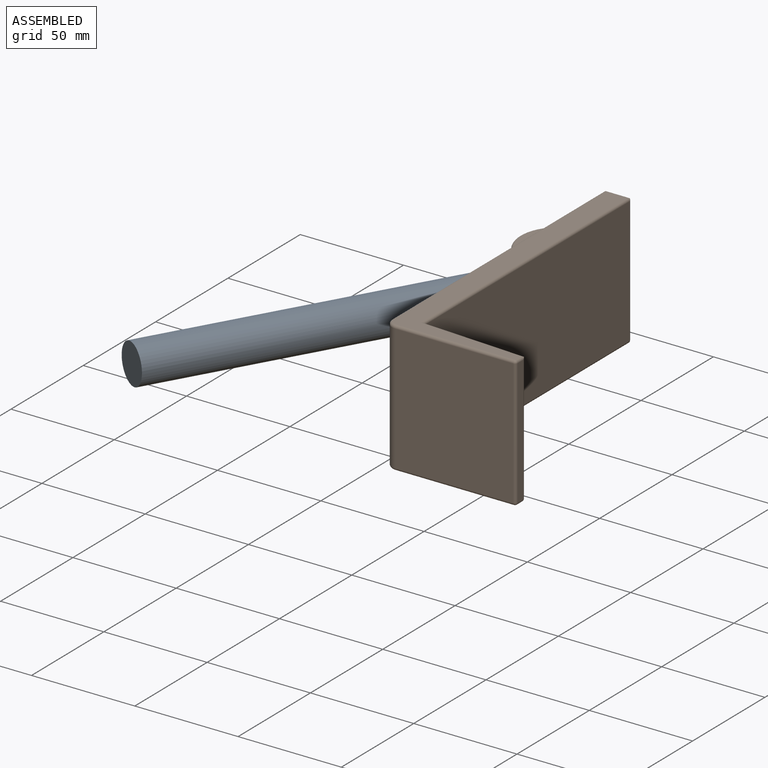
[diagram: assembled view]
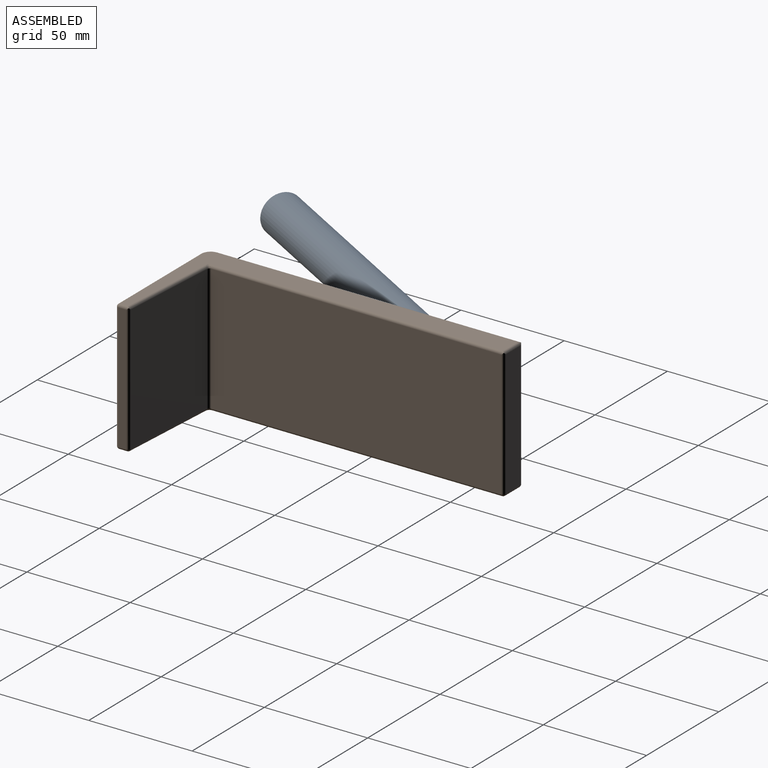
[diagram: assembled view, second angle]
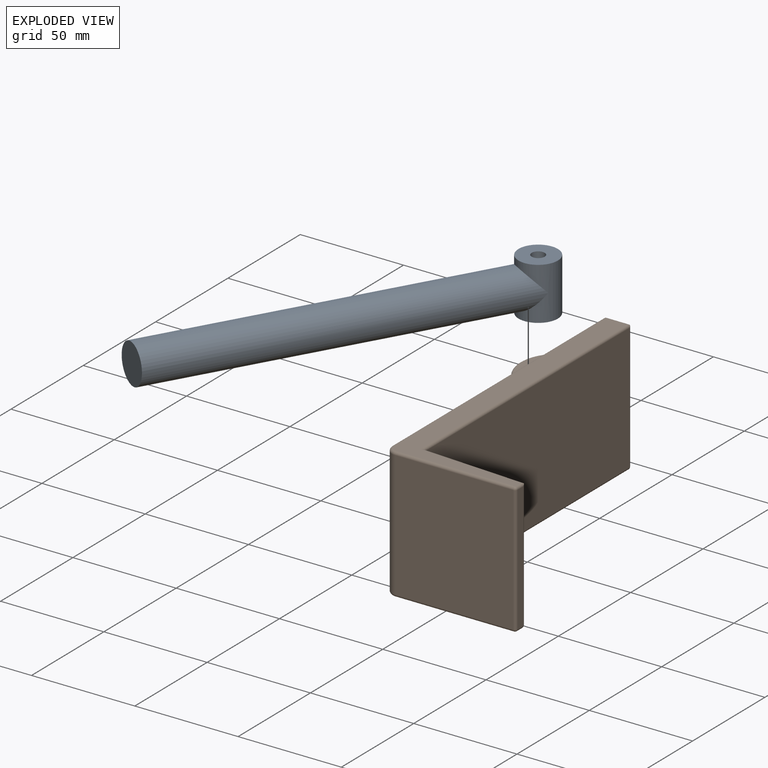
[diagram: exploded view]
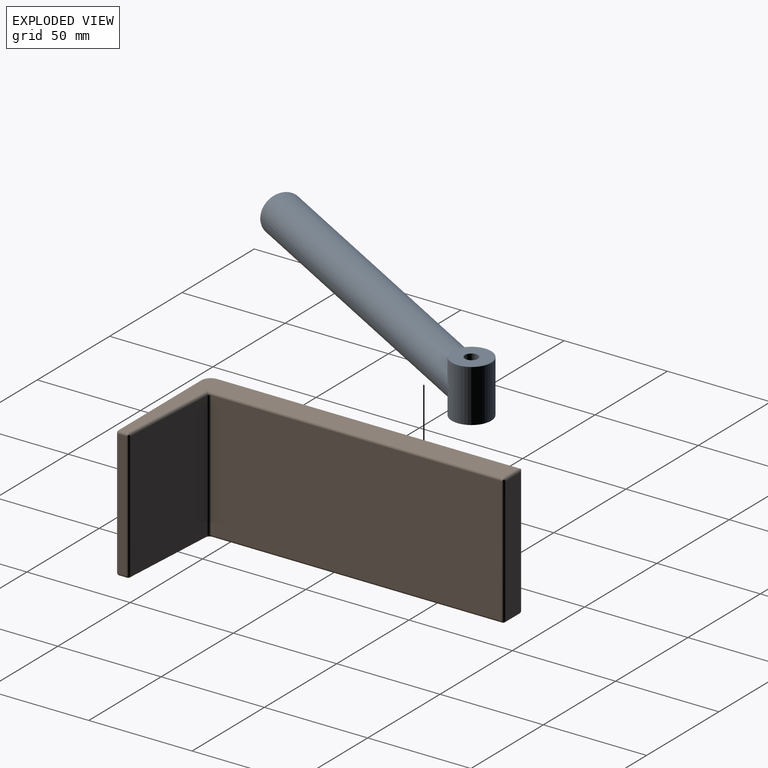
[diagram: exploded view, second angle]
ASSEMBLY  parts=2 mates=2
PART A: 6 faces, bbox 25.4x19.1x187.3 mm
  f0: plane 19.05x19.05mm, normal (0,0,1), area 285mm2, adj f1
  f1: cylinder r=9.53mm len=177.8mm, axis (0,0,1), area 10278mm2, adj f0,f4
  f2: plane 19.05x19.05mm, normal (-1,0,0), area 253.4mm2, adj f4,f5
  f3: plane 19.05x19.05mm, normal (1,0,0), area 253.4mm2, adj f4,f5
  f4: cylinder r=9.53mm len=25.4mm, axis (-1,0,0), area 1157.2mm2, adj f1,f2,f3
  f5: cylinder r=3.17mm len=25.4mm, axis (1,0,0), area 506.7mm2, adj f2,f3
PART B: 67 faces, bbox 84.1x152.8x63.5 mm
  f0: plane 146.05x60.96mm, normal (-1,0,0), area 8193.1mm2, adj f8,f13,f22,f27,f48,f49,f50,f51
  f1: plane 60.96x57.15mm, normal (0,-1,0), area 3483.9mm2, adj f8,f14,f31,f33
  f2: plane 60.96x3.89mm, normal (1,0,0), area 236.9mm2, adj f12,f25,f30,f33
  f3: plane 60.96x48.42mm, normal (0.06,1,0), area 2957.3mm2, adj f10,f19,f25,f26
  f4: plane 140.41x60.96mm, normal (1,0,0), area 8559.5mm2, adj f9,f16,f19,f20
  f5: plane 60.96x10.16mm, normal (0,1,0), area 619.4mm2, adj f11,f16,f21,f22
  f6: plane 149.86x60.96mm, normal (0,0,1), area 1797.6mm2, adj f9,f10,f11,f12,f13,f14,f15
  f7: plane 149.86x60.96mm, normal (0,0,-1), area 1798.8mm2, adj f20,f21,f23,f26,f27,f29,f30,f31
  f8: cylinder r=5.08mm len=60.96mm, axis (0,0,-1), area 486.4mm2, adj f0,f1,f15,f29
  f9: cylinder r=1.27mm len=143.7mm, axis (0,-1,0), area 282.8mm2, adj f4,f6,f11,f16,f17
  f10: cylinder r=1.27mm len=51.75mm, axis (1,-0.06,0), area 99.4mm2, adj f3,f6,f12,f17,f25
  f11: cylinder r=1.27mm len=11.96mm, axis (1,0,0), area 22.2mm2, adj f5,f6,f9,f13,f16,f22
  f12: cylinder r=1.27mm len=4.76mm, axis (0,-1,0), area 8.7mm2, adj f2,f6,f10,f25,f34
  f13: cylinder r=1.27mm len=146.95mm, axis (0,1,0), area 292.3mm2, adj f0,f6,f11,f15,f22
  f14: cylinder r=1.27mm len=57.15mm, axis (-1,0,0), area 114mm2, adj f1,f6,f15,f34
  f15: torus R=3.81mm, axis (0,0,1), area 14.5mm2, adj f6,f8,f13,f14
  f16: cylinder r=1.27mm len=61.86mm, axis (0,0,-1), area 122.6mm2, adj f4,f5,f9,f11,f18
  f17: bspline ~2.46x2.39mm, area 2.9mm2, adj f9,f10,f19
  f18: sphere r=1.27mm, area 2.5mm2, adj f16,f20,f21
  f19: cylinder r=1.27mm len=60.96mm, axis (0,0,1), area 116.8mm2, adj f3,f4,f17,f23
  f20: cylinder r=1.27mm len=140.41mm, axis (0,1,0), area 280.1mm2, adj f4,f7,f18,f23
  f21: cylinder r=1.27mm len=10.16mm, axis (-1,0,0), area 20.3mm2, adj f5,f7,f18,f24
  f22: cylinder r=1.27mm len=61.86mm, axis (0,0,-1), area 122.6mm2, adj f0,f5,f11,f13,f24
  f23: torus R=2.54mm, axis (0,0,1), area 5.2mm2, adj f7,f19,f20,f26
  f24: sphere r=1.27mm, area 2.5mm2, adj f21,f22,f27
  f25: cylinder r=1.27mm len=61.83mm, axis (0,0,-1), area 117.7mm2, adj f2,f3,f10,f12,f28
  f26: cylinder r=1.27mm len=48.5mm, axis (-1,0.06,0), area 96.8mm2, adj f3,f7,f23,f28
  f27: cylinder r=1.27mm len=146.05mm, axis (0,-1,0), area 291.4mm2, adj f0,f7,f24,f29
  f28: sphere r=1.27mm, area 2.4mm2, adj f25,f26,f30
  f29: torus R=3.81mm, axis (0,0,1), area 14.5mm2, adj f7,f8,f27,f31
  f30: cylinder r=1.27mm len=3.89mm, axis (0,1,0), area 7.8mm2, adj f2,f7,f28,f32
  f31: cylinder r=1.27mm len=57.15mm, axis (1,0,0), area 114mm2, adj f1,f7,f29,f32
  f32: sphere r=1.27mm, area 2.5mm2, adj f30,f31,f33
  f33: cylinder r=1.27mm len=60.96mm, axis (0,0,-1), area 121.6mm2, adj f1,f2,f32,f34
  f34: sphere r=1.27mm, area 2.5mm2, adj f12,f14,f33
  f35: plane 35.47x16.51mm, normal (0,0,1), area 389.4mm2, adj f46,f63,f66
  f36: cylinder r=19.05mm len=38.03mm, axis (0,0,-1), area 218.9mm2, adj f57,f61,f62,f66
  f37: plane 35.47x16.51mm, normal (0,0,-1), area 389.4mm2, adj f43,f57,f58
  f38: plane 35.47x16.51mm, normal (0,0,1), area 389.4mm2, adj f44,f53,f56
  f39: cylinder r=19.05mm len=38.03mm, axis (0,0,-1), area 218.9mm2, adj f47,f51,f52,f56
  f40: plane 35.47x16.51mm, normal (0,0,-1), area 389.4mm2, adj f45,f47,f48
  f41: cylinder r=3.17mm len=6.35mm, axis (0,0,1), area 76mm2, adj f44,f45
  f42: cylinder r=3.17mm len=6.35mm, axis (0,0,1), area 76mm2, adj f43,f46
  f43: torus R=4.45mm, axis (0,0,1), area 45.6mm2, adj f37,f42
  f44: torus R=4.45mm, axis (0,0,1), area 45.6mm2, adj f38,f41
  f45: torus R=4.45mm, axis (0,0,1), area 45.6mm2, adj f40,f41
  f46: torus R=4.45mm, axis (0,0,1), area 45.6mm2, adj f35,f42
  f47: torus R=17.78mm, axis (0,0,1), area 111.6mm2, adj f39,f40,f49,f50
  f48: cylinder r=1.27mm len=35.47mm, axis (0,-1,0), area 70.8mm2, adj f0,f40,f49,f50
  f49: bspline ~3.11x2.98mm, area 5.3mm2, adj f0,f47,f48,f51
  f50: bspline ~3.12x2.98mm, area 5.3mm2, adj f0,f47,f48,f52
  f51: cylinder r=1.27mm len=3.81mm, axis (0,0,-1), area 7.3mm2, adj f0,f39,f49,f54
  f52: cylinder r=1.27mm len=3.81mm, axis (0,0,-1), area 7.3mm2, adj f0,f39,f50,f55
  f53: cylinder r=1.27mm len=35.47mm, axis (0,1,0), area 70.8mm2, adj f0,f38,f54,f55
  f54: bspline ~3.12x2.98mm, area 5.3mm2, adj f0,f51,f53,f56
  f55: bspline ~3.11x2.98mm, area 5.3mm2, adj f0,f52,f53,f56
  f56: torus R=17.78mm, axis (0,0,1), area 111.6mm2, adj f38,f39,f54,f55
  f57: torus R=17.78mm, axis (0,0,1), area 111.6mm2, adj f36,f37,f59,f60
  f58: cylinder r=1.27mm len=35.47mm, axis (0,-1,0), area 70.8mm2, adj f0,f37,f59,f60
  f59: bspline ~3.11x2.98mm, area 5.3mm2, adj f0,f57,f58,f61
  f60: bspline ~3.12x2.98mm, area 5.3mm2, adj f0,f57,f58,f62
  f61: cylinder r=1.27mm len=3.81mm, axis (0,0,-1), area 7.3mm2, adj f0,f36,f59,f64
  f62: cylinder r=1.27mm len=3.81mm, axis (0,0,-1), area 7.3mm2, adj f0,f36,f60,f65
  f63: cylinder r=1.27mm len=35.47mm, axis (0,1,0), area 70.8mm2, adj f0,f35,f64,f65
  f64: bspline ~3.12x2.98mm, area 5.3mm2, adj f0,f61,f63,f66
  f65: bspline ~3.11x2.98mm, area 5.3mm2, adj f0,f62,f63,f66
  f66: torus R=17.78mm, axis (0,0,1), area 111.6mm2, adj f35,f36,f64,f65
PLACE A rot(axis=(0.45,-0.77,0.45),104.5deg) t=(65.81,156.31,41.94)mm
PLACE B t=(75.97,35.66,10.19)mm
MATE cylindrical A.f4 <-> B.f41  axis (0,0,1) through (65.81,156.31,54.64)mm
MATE planar A.f4 <-> B.f38  axis (0,0,-1) through (65.81,156.31,29.24)mm
